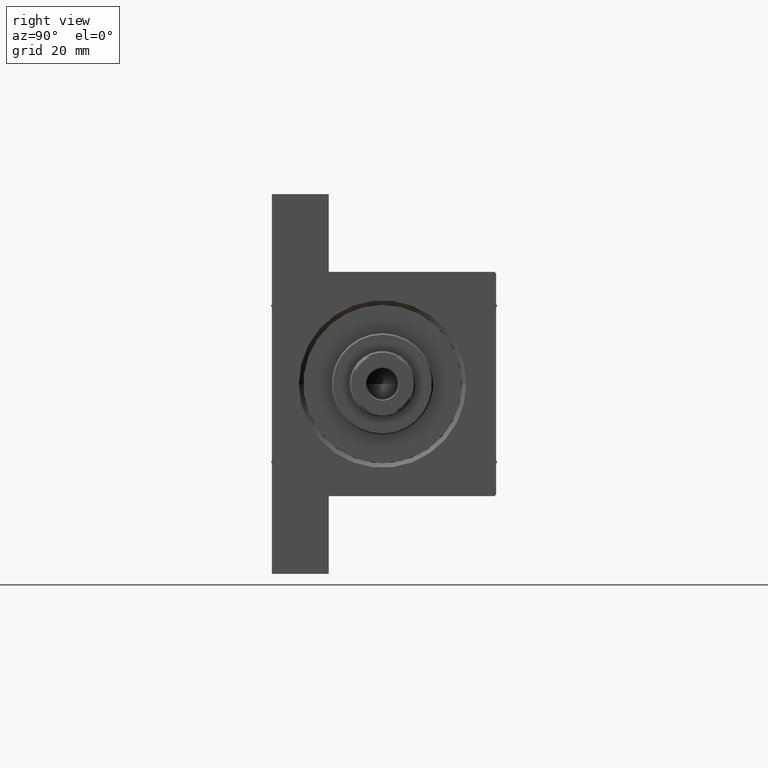
[diagram: clean part render]
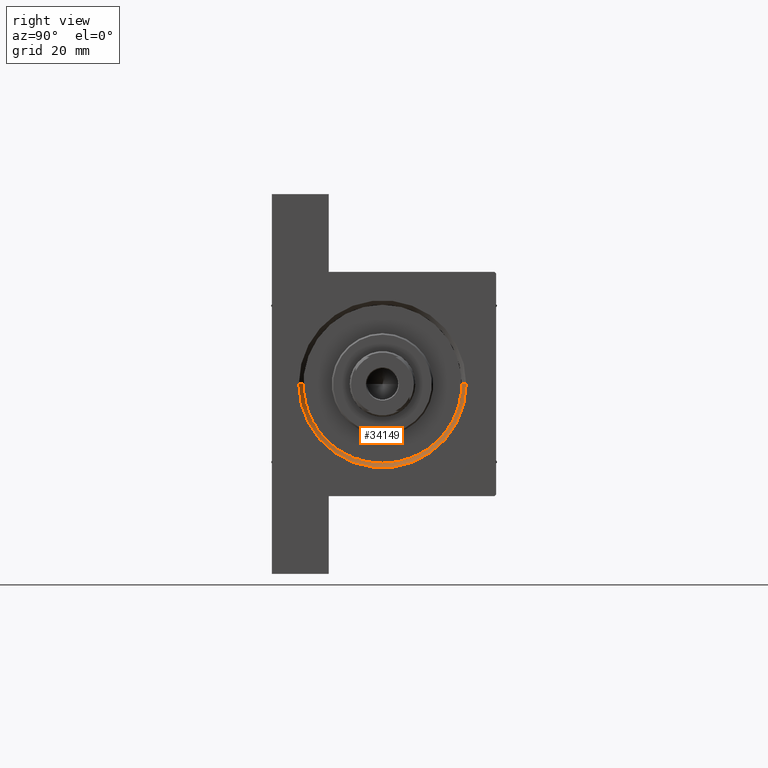
[diagram: same view with one face highlighted and labeled with its STEP entity id]
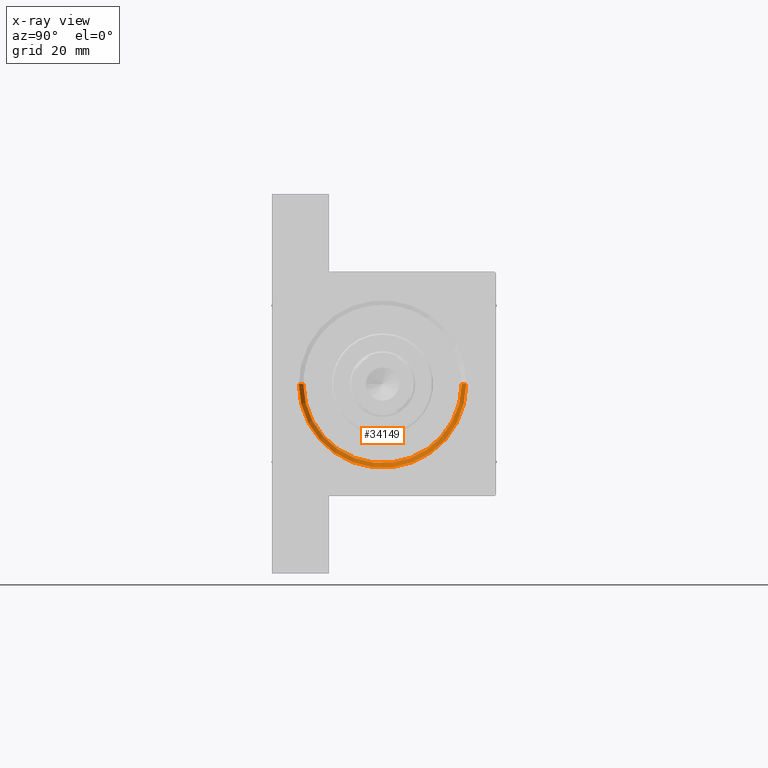
[diagram: x-ray of the same camera — body ghosted, the highlighted face saturated]
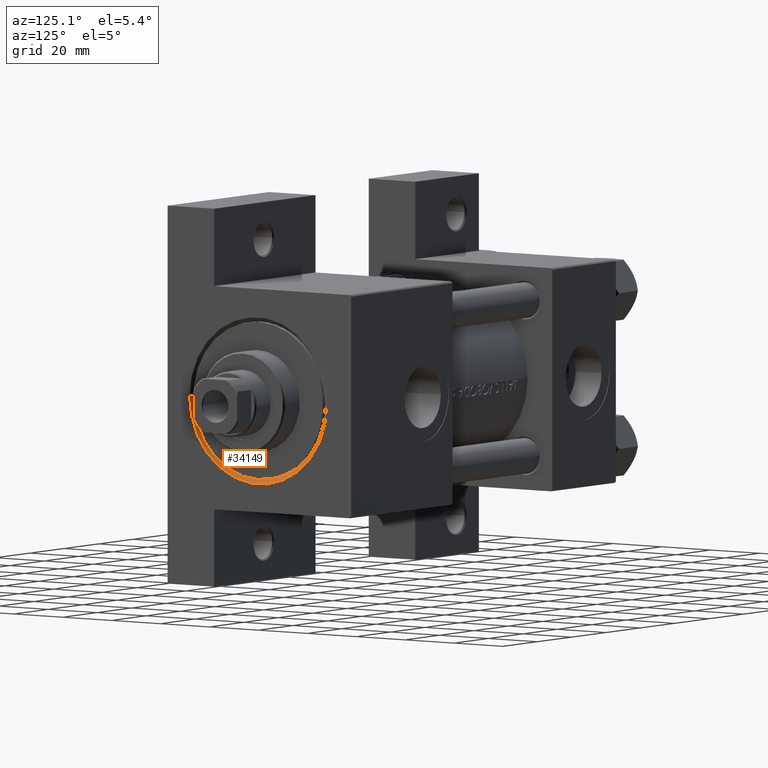
[diagram: same view with one face highlighted and labeled with its STEP entity id]
A machine part, right view. The second image highlights one B-rep face of the part: STEP entity #34149.
The next image is the same camera in x-ray: the body ghosted, the highlighted face saturated — about 0% of this face is hidden behind the body in this view.
A second angle (auxiliary view) of the same face is appended — the face is thin or edge-on in the first view.
In plain terms, the highlighted conical surface has half-angle 45 deg.
Its self-contained STEP definition (entity closure, byte-faithful):
#785 = AXIS2_PLACEMENT_3D ( 'NONE', #37455, #19175, #30240 ) ;
#1104 = EDGE_CURVE ( 'NONE', #39484, #41490, #25479, .T. ) ;
#2339 = CARTESIAN_POINT ( 'NONE',  ( 152.5000000000000568, 0.000000000000000000, -27.00000000000000355 ) ) ;
#3087 = CONICAL_SURFACE ( 'NONE', #785, 26.50000000000000355, 0.7853981633974644883 ) ;
#4992 = EDGE_LOOP ( 'NONE', ( #39025, #11376, #46281, #44487 ) ) ;
#6420 = DIRECTION ( 'NONE',  ( 0.7071067811865361374, 0.000000000000000000, -0.7071067811865588970 ) ) ;
#6847 = AXIS2_PLACEMENT_3D ( 'NONE', #14997, #15707, #37119 ) ;
#6972 = CARTESIAN_POINT ( 'NONE',  ( 152.5000000000000568, 3.245314017740486554E-15, 26.00000000000000355 ) ) ;
#11376 = ORIENTED_EDGE ( 'NONE', *, *, #44231, .F. ) ;
#11648 = VECTOR ( 'NONE', #6420, 1000.000000000000114 ) ;
#11894 = EDGE_CURVE ( 'NONE', #41490, #36365, #39058, .T. ) ;
#14419 = DIRECTION ( 'NONE',  ( 0.7071067811865361374, 8.659560562355073374E-17, 0.7071067811865588970 ) ) ;
#14678 = DIRECTION ( 'NONE',  ( 1.000000000000000000, 0.000000000000000000, 0.000000000000000000 ) ) ;
#14997 = CARTESIAN_POINT ( 'NONE',  ( 154.0000000000000000, 0.000000000000000000, -0.5000000000000004441 ) ) ;
#15707 = DIRECTION ( 'NONE',  ( -1.000000000000000000, -0.000000000000000000, 0.000000000000000000 ) ) ;
#19175 = DIRECTION ( 'NONE',  ( 1.000000000000000000, 0.000000000000000000, 0.000000000000000000 ) ) ;
#19304 = CARTESIAN_POINT ( 'NONE',  ( 152.5000000000000568, 3.245314017740486554E-15, 26.00000000000000355 ) ) ;
#21384 = CARTESIAN_POINT ( 'NONE',  ( 152.5000000000000568, 0.000000000000000000, -27.00000000000000355 ) ) ;
#22860 = EDGE_CURVE ( 'NONE', #27159, #36365, #39345, .T. ) ;
#25479 = LINE ( 'NONE', #6972, #34180 ) ;
#25747 = DIRECTION ( 'NONE',  ( 0.000000000000000000, 0.000000000000000000, 1.000000000000000000 ) ) ;
#26397 = FACE_OUTER_BOUND ( 'NONE', #4992, .T. ) ;
#27159 = VERTEX_POINT ( 'NONE', #21384 ) ;
#30240 = DIRECTION ( 'NONE',  ( 0.000000000000000000, 0.000000000000000000, -1.000000000000000000 ) ) ;
#32264 = CARTESIAN_POINT ( 'NONE',  ( 154.0000000000000000, 3.429011037612588881E-15, 27.49999999999999645 ) ) ;
#34149 = ADVANCED_FACE ( 'NONE', ( #26397 ), #3087, .F. ) ;
#34180 = VECTOR ( 'NONE', #14419, 1000.000000000000114 ) ;
#36365 = VERTEX_POINT ( 'NONE', #40111 ) ;
#36807 = CARTESIAN_POINT ( 'NONE',  ( 152.5000000000000568, 0.000000000000000000, -0.5000000000000004441 ) ) ;
#37119 = DIRECTION ( 'NONE',  ( 0.000000000000000000, 0.000000000000000000, 1.000000000000000000 ) ) ;
#37455 = CARTESIAN_POINT ( 'NONE',  ( 152.5000000000000568, 0.000000000000000000, -0.5000000000000004441 ) ) ;
#39025 = ORIENTED_EDGE ( 'NONE', *, *, #1104, .F. ) ;
#39058 = CIRCLE ( 'NONE', #6847, 27.99999999999999645 ) ;
#39345 = LINE ( 'NONE', #2339, #11648 ) ;
#39484 = VERTEX_POINT ( 'NONE', #19304 ) ;
#40111 = CARTESIAN_POINT ( 'NONE',  ( 154.0000000000000000, 0.000000000000000000, -28.49999999999999645 ) ) ;
#41490 = VERTEX_POINT ( 'NONE', #32264 ) ;
#43315 = CIRCLE ( 'NONE', #45634, 26.50000000000000355 ) ;
#44231 = EDGE_CURVE ( 'NONE', #27159, #39484, #43315, .T. ) ;
#44487 = ORIENTED_EDGE ( 'NONE', *, *, #11894, .F. ) ;
#45634 = AXIS2_PLACEMENT_3D ( 'NONE', #36807, #14678, #25747 ) ;
#46281 = ORIENTED_EDGE ( 'NONE', *, *, #22860, .T. ) ;